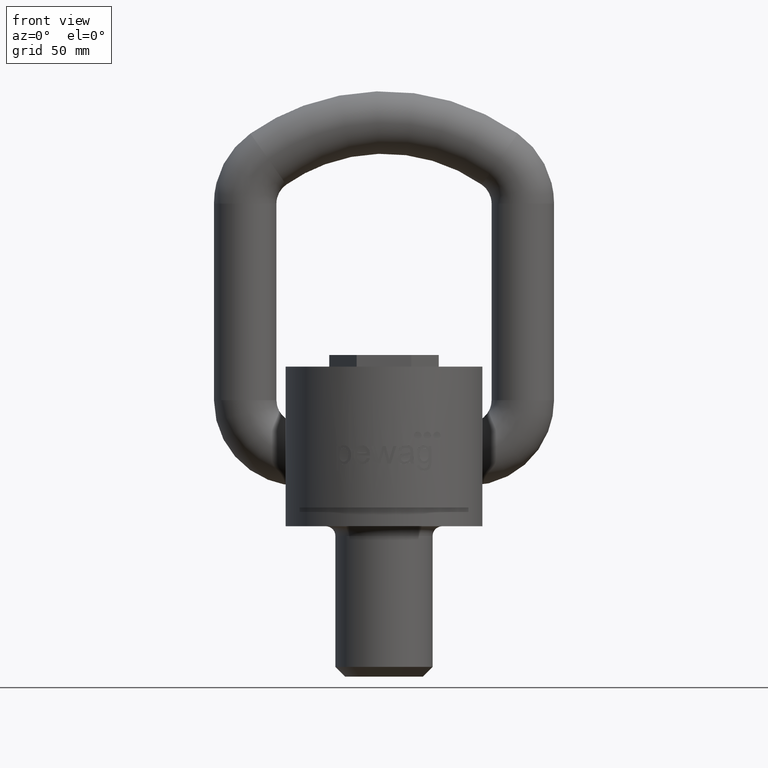
[diagram: clean part render]
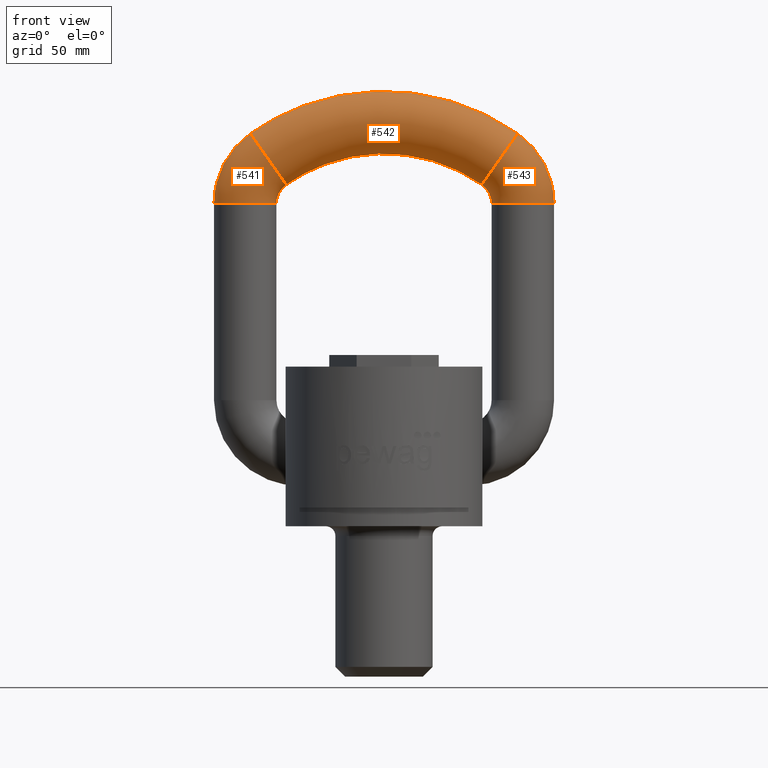
[diagram: same view with one multi-face feature highlighted, each face labeled with its STEP entity id]
A machine part, front view. The highlighted faces form ONE feature: a constant-radius fillet chain: 3 tangent blend faces with common blend radius 13.5 mm. The faces share edges in the B-rep.
Their STEP definitions:
[1] entity #542 (Torus):
#242=TOROIDAL_SURFACE('',#2597,87.,13.5);
#542=ADVANCED_FACE('',(#627,#628),#242,.T.);
#627=FACE_BOUND('',#791,.T.);
#628=FACE_BOUND('',#792,.T.);
#791=EDGE_LOOP('',(#1757));
#792=EDGE_LOOP('',(#1758));
#1138=CIRCLE('',#2594,13.5);
#1139=CIRCLE('',#2596,13.5);
#1757=ORIENTED_EDGE('',*,*,#2285,.T.);
#1758=ORIENTED_EDGE('',*,*,#2284,.F.);
#1973=VERTEX_POINT('',#5102);
#1974=VERTEX_POINT('',#5105);
#2284=EDGE_CURVE('',#1973,#1973,#1138,.T.);
#2285=EDGE_CURVE('',#1974,#1974,#1139,.T.);
#2594=AXIS2_PLACEMENT_3D('',#5101,#3042,#3043);
#2596=AXIS2_PLACEMENT_3D('',#5104,#3046,#3047);
#2597=AXIS2_PLACEMENT_3D('',#5106,#3048,#3049);
#3042=DIRECTION('',(-0.818291720111281,0.,-0.574803149606299));
#3043=DIRECTION('',(-0.574803149606299,0.,0.818291720111281));
#3046=DIRECTION('',(-0.818291720111281,0.,0.574803149606299));
#3047=DIRECTION('',(0.574803149606299,0.,0.818291720111281));
#3048=DIRECTION('',(0.,-1.,0.));
#3049=DIRECTION('',(0.,0.,-1.));
#5101=CARTESIAN_POINT('',(-50.007874015748,45.,150.691379649681));
#5102=CARTESIAN_POINT('',(-57.767716535433,45.,161.738317871184));
#5104=CARTESIAN_POINT('',(50.007874015748,45.,150.691379649681));
#5105=CARTESIAN_POINT('',(57.7677165354331,45.,161.738317871184));
#5106=CARTESIAN_POINT('',(0.,45.,79.5));
[2] entity #543 (Torus):
#243=TOROIDAL_SURFACE('',#2599,23.5,13.5);
#543=ADVANCED_FACE('',(#629,#630),#243,.T.);
#629=FACE_BOUND('',#793,.T.);
#630=FACE_BOUND('',#794,.T.);
#793=EDGE_LOOP('',(#1759));
#794=EDGE_LOOP('',(#1760));
#1139=CIRCLE('',#2596,13.5);
#1140=CIRCLE('',#2598,13.5);
#1759=ORIENTED_EDGE('',*,*,#2285,.F.);
#1760=ORIENTED_EDGE('',*,*,#2286,.T.);
#1974=VERTEX_POINT('',#5105);
#1975=VERTEX_POINT('',#5108);
#2285=EDGE_CURVE('',#1974,#1974,#1139,.T.);
#2286=EDGE_CURVE('',#1975,#1975,#1140,.T.);
#2596=AXIS2_PLACEMENT_3D('',#5104,#3046,#3047);
#2598=AXIS2_PLACEMENT_3D('',#5107,#3050,#3051);
#2599=AXIS2_PLACEMENT_3D('',#5109,#3052,#3053);
#3046=DIRECTION('',(-0.818291720111281,0.,0.574803149606299));
#3047=DIRECTION('',(0.574803149606299,0.,0.818291720111281));
#3050=DIRECTION('',(1.12166540207738E-15,0.,1.));
#3051=DIRECTION('',(1.,0.,-2.05596856412066E-15));
#3052=DIRECTION('',(0.,1.,0.));
#3053=DIRECTION('',(0.,0.,1.));
#5104=CARTESIAN_POINT('',(50.007874015748,45.,150.691379649681));
#5105=CARTESIAN_POINT('',(57.7677165354331,45.,161.738317871184));
#5107=CARTESIAN_POINT('',(60.,45.,131.461524227066));
#5108=CARTESIAN_POINT('',(73.5,45.,131.461524227066));
#5109=CARTESIAN_POINT('',(36.5,45.,131.461524227066));
[3] entity #541 (Torus):
#241=TOROIDAL_SURFACE('',#2595,23.5,13.5);
#541=ADVANCED_FACE('',(#625,#626),#241,.T.);
#625=FACE_BOUND('',#789,.T.);
#626=FACE_BOUND('',#790,.T.);
#789=EDGE_LOOP('',(#1755));
#790=EDGE_LOOP('',(#1756));
#1137=CIRCLE('',#2592,13.5);
#1138=CIRCLE('',#2594,13.5);
#1755=ORIENTED_EDGE('',*,*,#2284,.T.);
#1756=ORIENTED_EDGE('',*,*,#2283,.F.);
#1972=VERTEX_POINT('',#5099);
#1973=VERTEX_POINT('',#5102);
#2283=EDGE_CURVE('',#1972,#1972,#1137,.T.);
#2284=EDGE_CURVE('',#1973,#1973,#1138,.T.);
#2592=AXIS2_PLACEMENT_3D('',#5098,#3038,#3039);
#2594=AXIS2_PLACEMENT_3D('',#5101,#3042,#3043);
#2595=AXIS2_PLACEMENT_3D('',#5103,#3044,#3045);
#3038=DIRECTION('',(-1.11022302462516E-16,0.,-1.));
#3039=DIRECTION('',(-1.,0.,0.));
#3042=DIRECTION('',(-0.818291720111281,0.,-0.574803149606299));
#3043=DIRECTION('',(-0.574803149606299,0.,0.818291720111281));
#3044=DIRECTION('',(0.,-1.,0.));
#3045=DIRECTION('',(0.,0.,-1.));
#5098=CARTESIAN_POINT('',(-60.,45.,131.461524227066));
#5099=CARTESIAN_POINT('',(-73.5,45.,131.461524227066));
#5101=CARTESIAN_POINT('',(-50.007874015748,45.,150.691379649681));
#5102=CARTESIAN_POINT('',(-57.767716535433,45.,161.738317871184));
#5103=CARTESIAN_POINT('',(-36.5,45.,131.461524227066));